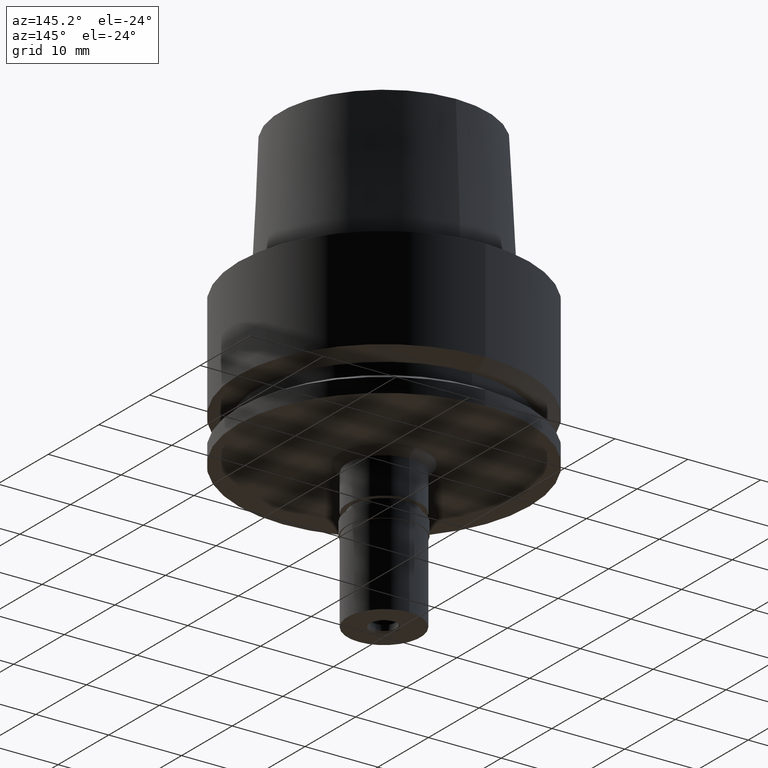
[diagram: clean part render]
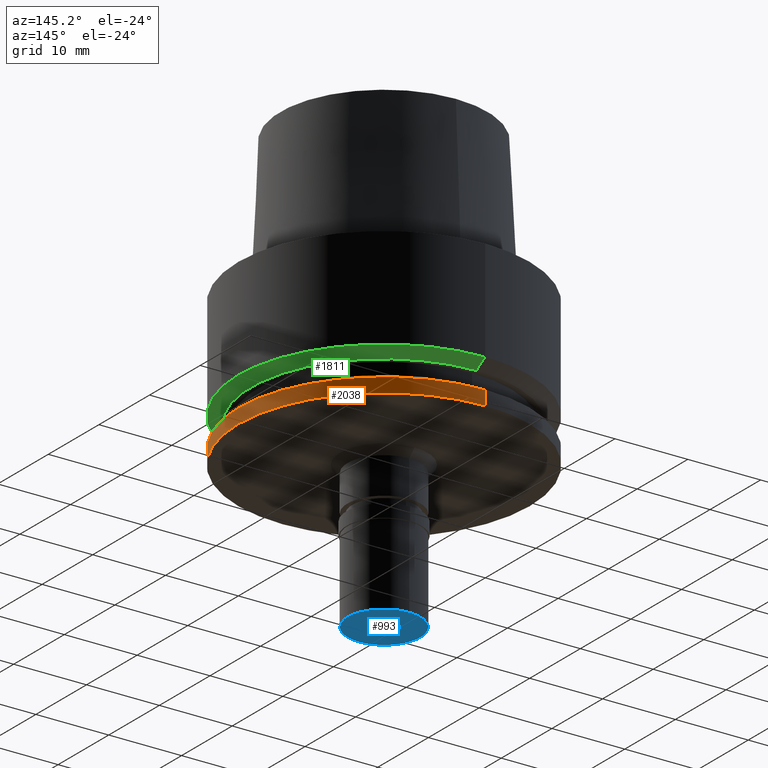
[diagram: same view with three faces highlighted in distinct colors, each labeled with its STEP entity id]
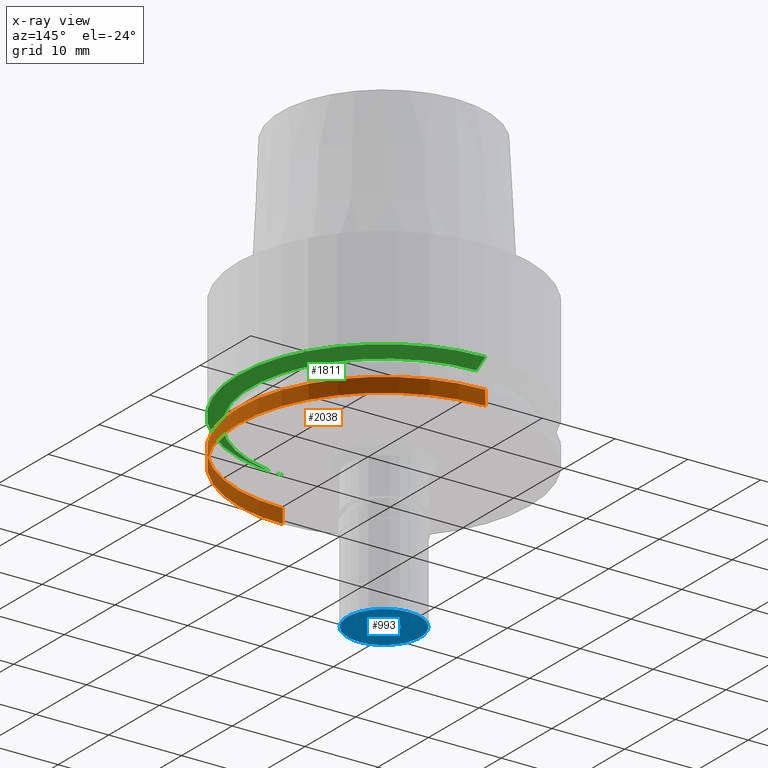
[diagram: x-ray of the same camera — body ghosted, the three highlighted faces saturated]
A machine part, auxiliary view with three faces highlighted in distinct colors.
The next image is the same camera in x-ray (body ghosted, the three faces saturated) — at least one of them is partly hidden behind the body in this view.
Their STEP definitions:

[orange] entity #2038 — the highlighted cylindrical surface (partial cylindrical patch) has radius 20 mm, axis along (0, 0, 1).
#169 = FACE_OUTER_BOUND ( 'NONE', #953, .T. ) ;
#339 = LINE ( 'NONE', #2235, #2446 ) ;
#420 = LINE ( 'NONE', #1682, #631 ) ;
#483 = EDGE_CURVE ( 'NONE', #2278, #1306, #339, .T. ) ;
#548 = DIRECTION ( 'NONE',  ( 0.0000000000000000000, -1.000000000000000000, 0.0000000000000000000 ) ) ;
#554 = EDGE_CURVE ( 'NONE', #1306, #1290, #2574, .T. ) ;
#631 = VECTOR ( 'NONE', #1258, 1000.000000000000000 ) ;
#801 = CARTESIAN_POINT ( 'NONE',  ( 0.0000000000000000000, 20.00000000000000000, -20.00000000000000000 ) ) ;
#845 = AXIS2_PLACEMENT_3D ( 'NONE', #1842, #1652, #2267 ) ;
#888 = EDGE_CURVE ( 'NONE', #1904, #2278, #2063, .T. ) ;
#953 = EDGE_LOOP ( 'NONE', ( #1770, #1985, #2604, #2266 ) ) ;
#957 = CARTESIAN_POINT ( 'NONE',  ( 0.0000000000000000000, 0.0000000000000000000, -18.02072594461999699 ) ) ;
#1003 = CYLINDRICAL_SURFACE ( 'NONE', #845, 20.00000000000000000 ) ;
#1206 = DIRECTION ( 'NONE',  ( 0.0000000000000000000, 1.723159621264999923E-13, -1.000000000000000000 ) ) ;
#1258 = DIRECTION ( 'NONE',  ( 0.0000000000000000000, -1.723159621264999923E-13, -1.000000000000000000 ) ) ;
#1290 = VERTEX_POINT ( 'NONE', #801 ) ;
#1306 = VERTEX_POINT ( 'NONE', #2056 ) ;
#1404 = AXIS2_PLACEMENT_3D ( 'NONE', #2651, #1621, #548 ) ;
#1491 = EDGE_CURVE ( 'NONE', #1904, #1290, #420, .T. ) ;
#1621 = DIRECTION ( 'NONE',  ( 0.0000000000000000000, 0.0000000000000000000, 1.000000000000000000 ) ) ;
#1652 = DIRECTION ( 'NONE',  ( 0.0000000000000000000, 0.0000000000000000000, 1.000000000000000000 ) ) ;
#1682 = CARTESIAN_POINT ( 'NONE',  ( 0.0000000000000000000, 20.00000000000000000, -18.02072594461999699 ) ) ;
#1770 = ORIENTED_EDGE ( 'NONE', *, *, #888, .T. ) ;
#1805 = CARTESIAN_POINT ( 'NONE',  ( 0.0000000000000000000, -20.00000000000000000, -18.02072594461999699 ) ) ;
#1842 = CARTESIAN_POINT ( 'NONE',  ( 0.0000000000000000000, 0.0000000000000000000, -39.11499999999999488 ) ) ;
#1904 = VERTEX_POINT ( 'NONE', #2662 ) ;
#1985 = ORIENTED_EDGE ( 'NONE', *, *, #483, .T. ) ;
#2038 = ADVANCED_FACE ( 'NONE', ( #169 ), #1003, .T. ) ;
#2056 = CARTESIAN_POINT ( 'NONE',  ( 0.0000000000000000000, -20.00000000000000000, -20.00000000000000000 ) ) ;
#2063 = CIRCLE ( 'NONE', #2667, 20.00000000000000000 ) ;
#2230 = DIRECTION ( 'NONE',  ( 0.0000000000000000000, 0.0000000000000000000, -1.000000000000000000 ) ) ;
#2235 = CARTESIAN_POINT ( 'NONE',  ( 0.0000000000000000000, -20.00000000000000000, -18.02072594461999699 ) ) ;
#2266 = ORIENTED_EDGE ( 'NONE', *, *, #1491, .F. ) ;
#2267 = DIRECTION ( 'NONE',  ( 0.0000000000000000000, 1.000000000000000000, 0.0000000000000000000 ) ) ;
#2278 = VERTEX_POINT ( 'NONE', #1805 ) ;
#2402 = DIRECTION ( 'NONE',  ( 0.0000000000000000000, 1.000000000000000000, 0.0000000000000000000 ) ) ;
#2446 = VECTOR ( 'NONE', #1206, 1000.000000000000000 ) ;
#2574 = CIRCLE ( 'NONE', #1404, 20.00000000000000000 ) ;
#2604 = ORIENTED_EDGE ( 'NONE', *, *, #554, .T. ) ;
#2651 = CARTESIAN_POINT ( 'NONE',  ( 0.0000000000000000000, 0.0000000000000000000, -20.00000000000000000 ) ) ;
#2662 = CARTESIAN_POINT ( 'NONE',  ( 0.0000000000000000000, 20.00000000000000000, -18.02072594461999699 ) ) ;
#2667 = AXIS2_PLACEMENT_3D ( 'NONE', #957, #2230, #2402 ) ;

[blue] entity #993 — the highlighted planar face has unit normal (0, 0, 1).
#11 = AXIS2_PLACEMENT_3D ( 'NONE', #784, #816, #161 ) ;
#40 = ORIENTED_EDGE ( 'NONE', *, *, #2600, .F. ) ;
#145 = DIRECTION ( 'NONE',  ( 0.0000000000000000000, 1.000000000000000000, 0.0000000000000000000 ) ) ;
#161 = DIRECTION ( 'NONE',  ( 0.0000000000000000000, 1.000000000000000000, 0.0000000000000000000 ) ) ;
#165 = CARTESIAN_POINT ( 'NONE',  ( 0.0000000000000000000, 0.0000000000000000000, -13.00000000000000000 ) ) ;
#424 = EDGE_CURVE ( 'NONE', #1133, #1949, #918, .T. ) ;
#436 = CARTESIAN_POINT ( 'NONE',  ( 0.0000000000000000000, -1.899999999999999911, -13.00000000000000000 ) ) ;
#481 = CARTESIAN_POINT ( 'NONE',  ( 0.0000000000000000000, 0.0000000000000000000, -13.00000000000000000 ) ) ;
#626 = CIRCLE ( 'NONE', #1145, 1.899999999999999911 ) ;
#714 = CIRCLE ( 'NONE', #1154, 5.000000000000000000 ) ;
#743 = VERTEX_POINT ( 'NONE', #1434 ) ;
#750 = EDGE_CURVE ( 'NONE', #2172, #743, #626, .T. ) ;
#784 = CARTESIAN_POINT ( 'NONE',  ( 0.0000000000000000000, 0.0000000000000000000, -13.00000000000000000 ) ) ;
#816 = DIRECTION ( 'NONE',  ( 0.0000000000000000000, 0.0000000000000000000, -1.000000000000000000 ) ) ;
#895 = PLANE ( 'NONE',  #1889 ) ;
#918 = CIRCLE ( 'NONE', #1142, 5.000000000000000000 ) ;
#934 = DIRECTION ( 'NONE',  ( 0.0000000000000000000, 0.0000000000000000000, 1.000000000000000000 ) ) ;
#993 = ADVANCED_FACE ( 'NONE', ( #1517, #1098 ), #895, .F. ) ;
#1042 = ORIENTED_EDGE ( 'NONE', *, *, #1372, .F. ) ;
#1098 = FACE_BOUND ( 'NONE', #1351, .T. ) ;
#1133 = VERTEX_POINT ( 'NONE', #2367 ) ;
#1142 = AXIS2_PLACEMENT_3D ( 'NONE', #165, #2207, #145 ) ;
#1145 = AXIS2_PLACEMENT_3D ( 'NONE', #1862, #2683, #1656 ) ;
#1154 = AXIS2_PLACEMENT_3D ( 'NONE', #1425, #2252, #1222 ) ;
#1222 = DIRECTION ( 'NONE',  ( 0.0000000000000000000, -1.000000000000000000, 0.0000000000000000000 ) ) ;
#1351 = EDGE_LOOP ( 'NONE', ( #1042, #1840 ) ) ;
#1372 = EDGE_CURVE ( 'NONE', #743, #2172, #1459, .T. ) ;
#1425 = CARTESIAN_POINT ( 'NONE',  ( 0.0000000000000000000, 0.0000000000000000000, -13.00000000000000000 ) ) ;
#1434 = CARTESIAN_POINT ( 'NONE',  ( 0.0000000000000000000, 1.899999999999999911, -13.00000000000000000 ) ) ;
#1444 = ORIENTED_EDGE ( 'NONE', *, *, #424, .F. ) ;
#1459 = CIRCLE ( 'NONE', #11, 1.899999999999999911 ) ;
#1517 = FACE_OUTER_BOUND ( 'NONE', #1778, .T. ) ;
#1656 = DIRECTION ( 'NONE',  ( 0.0000000000000000000, -1.000000000000000000, 0.0000000000000000000 ) ) ;
#1773 = DIRECTION ( 'NONE',  ( 1.000000000000000000, 0.0000000000000000000, 0.0000000000000000000 ) ) ;
#1778 = EDGE_LOOP ( 'NONE', ( #1444, #40 ) ) ;
#1830 = CARTESIAN_POINT ( 'NONE',  ( 0.0000000000000000000, -5.000000000000000000, -13.00000000000000000 ) ) ;
#1840 = ORIENTED_EDGE ( 'NONE', *, *, #750, .F. ) ;
#1862 = CARTESIAN_POINT ( 'NONE',  ( 0.0000000000000000000, 0.0000000000000000000, -13.00000000000000000 ) ) ;
#1889 = AXIS2_PLACEMENT_3D ( 'NONE', #481, #934, #1773 ) ;
#1949 = VERTEX_POINT ( 'NONE', #1830 ) ;
#2172 = VERTEX_POINT ( 'NONE', #436 ) ;
#2207 = DIRECTION ( 'NONE',  ( 0.0000000000000000000, 0.0000000000000000000, 1.000000000000000000 ) ) ;
#2252 = DIRECTION ( 'NONE',  ( 0.0000000000000000000, 0.0000000000000000000, 1.000000000000000000 ) ) ;
#2367 = CARTESIAN_POINT ( 'NONE',  ( 0.0000000000000000000, 5.000000000000000000, -13.00000000000000000 ) ) ;
#2600 = EDGE_CURVE ( 'NONE', #1949, #1133, #714, .T. ) ;
#2683 = DIRECTION ( 'NONE',  ( 0.0000000000000000000, 0.0000000000000000000, -1.000000000000000000 ) ) ;

[green] entity #1811 — the highlighted conical surface has half-angle 60 deg.
#26 = DIRECTION ( 'NONE',  ( 0.0000000000000000000, 0.0000000000000000000, 1.000000000000000000 ) ) ;
#114 = CARTESIAN_POINT ( 'NONE',  ( 0.0000000000000000000, -20.00000000000000000, -13.97927405538000123 ) ) ;
#167 = ORIENTED_EDGE ( 'NONE', *, *, #390, .T. ) ;
#220 = EDGE_CURVE ( 'NONE', #939, #1072, #442, .T. ) ;
#306 = CARTESIAN_POINT ( 'NONE',  ( 0.0000000000000000000, -20.00000000000000000, -13.97927405538000123 ) ) ;
#390 = EDGE_CURVE ( 'NONE', #939, #2647, #1009, .T. ) ;
#442 = CIRCLE ( 'NONE', #1577, 20.00000000000000000 ) ;
#455 = EDGE_CURVE ( 'NONE', #1072, #2103, #2251, .T. ) ;
#531 = DIRECTION ( 'NONE',  ( 0.0000000000000000000, 0.0000000000000000000, 1.000000000000000000 ) ) ;
#752 = AXIS2_PLACEMENT_3D ( 'NONE', #2612, #531, #2334 ) ;
#939 = VERTEX_POINT ( 'NONE', #306 ) ;
#1009 = LINE ( 'NONE', #114, #2061 ) ;
#1050 = DIRECTION ( 'NONE',  ( 0.0000000000000000000, -1.000000000000000000, 0.0000000000000000000 ) ) ;
#1072 = VERTEX_POINT ( 'NONE', #1932 ) ;
#1077 = CARTESIAN_POINT ( 'NONE',  ( 0.0000000000000000000, -18.23205080331999994, -15.00000000000000000 ) ) ;
#1175 = DIRECTION ( 'NONE',  ( 0.0000000000000000000, -1.000000000000000000, 0.0000000000000000000 ) ) ;
#1212 = ORIENTED_EDGE ( 'NONE', *, *, #455, .F. ) ;
#1325 = CARTESIAN_POINT ( 'NONE',  ( 0.0000000000000000000, 18.23205080331999994, -15.00000000000000000 ) ) ;
#1417 = CIRCLE ( 'NONE', #1588, 18.23205080331999994 ) ;
#1493 = VECTOR ( 'NONE', #1599, 999.9999999999998863 ) ;
#1515 = FACE_OUTER_BOUND ( 'NONE', #2414, .T. ) ;
#1577 = AXIS2_PLACEMENT_3D ( 'NONE', #1902, #26, #1050 ) ;
#1580 = CARTESIAN_POINT ( 'NONE',  ( 0.0000000000000000000, 20.00000000000000000, -13.97927405538000123 ) ) ;
#1582 = CARTESIAN_POINT ( 'NONE',  ( 0.0000000000000000000, 0.0000000000000000000, -15.00000000000000000 ) ) ;
#1588 = AXIS2_PLACEMENT_3D ( 'NONE', #1582, #2411, #1175 ) ;
#1599 = DIRECTION ( 'NONE',  ( 0.0000000000000000000, -0.8660254037841628172, -0.5000000000004778400 ) ) ;
#1811 = ADVANCED_FACE ( 'NONE', ( #1515 ), #2241, .T. ) ;
#1902 = CARTESIAN_POINT ( 'NONE',  ( 0.0000000000000000000, 0.0000000000000000000, -13.97927405538000123 ) ) ;
#1932 = CARTESIAN_POINT ( 'NONE',  ( 0.0000000000000000000, 20.00000000000000000, -13.97927405538000123 ) ) ;
#2061 = VECTOR ( 'NONE', #2452, 999.9999999999998863 ) ;
#2103 = VERTEX_POINT ( 'NONE', #1325 ) ;
#2241 = CONICAL_SURFACE ( 'NONE', #752, 19.11602540165999997, 1.047197551196400456 ) ;
#2251 = LINE ( 'NONE', #1580, #1493 ) ;
#2310 = ORIENTED_EDGE ( 'NONE', *, *, #2418, .T. ) ;
#2334 = DIRECTION ( 'NONE',  ( 0.0000000000000000000, 1.000000000000000000, 0.0000000000000000000 ) ) ;
#2411 = DIRECTION ( 'NONE',  ( 0.0000000000000000000, 0.0000000000000000000, 1.000000000000000000 ) ) ;
#2414 = EDGE_LOOP ( 'NONE', ( #2591, #167, #2310, #1212 ) ) ;
#2418 = EDGE_CURVE ( 'NONE', #2647, #2103, #1417, .T. ) ;
#2452 = DIRECTION ( 'NONE',  ( 0.0000000000000000000, 0.8660254037841628172, -0.5000000000004778400 ) ) ;
#2591 = ORIENTED_EDGE ( 'NONE', *, *, #220, .F. ) ;
#2612 = CARTESIAN_POINT ( 'NONE',  ( 0.0000000000000000000, 0.0000000000000000000, -14.48963702768999973 ) ) ;
#2647 = VERTEX_POINT ( 'NONE', #1077 ) ;